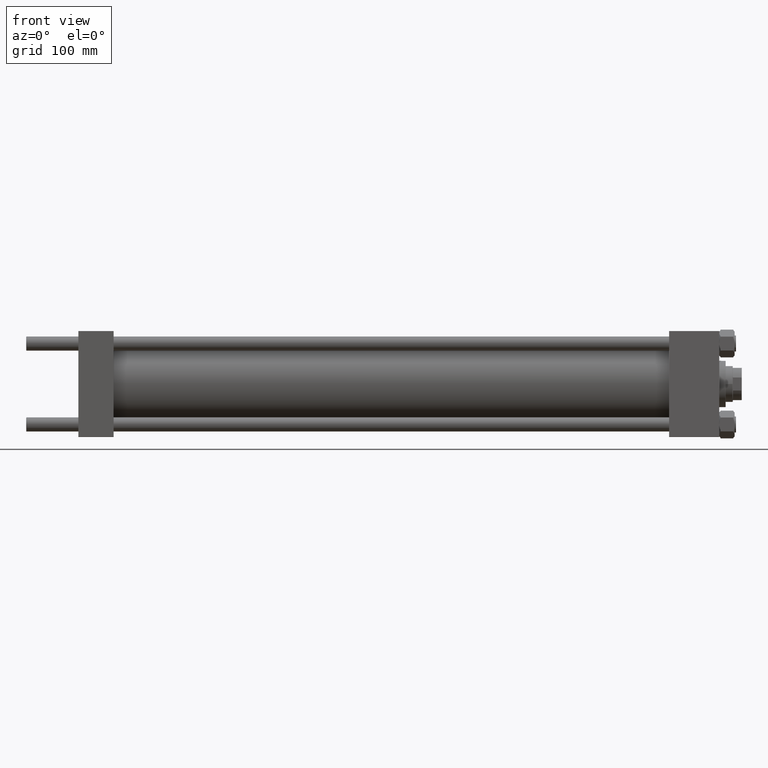
[diagram: clean part render]
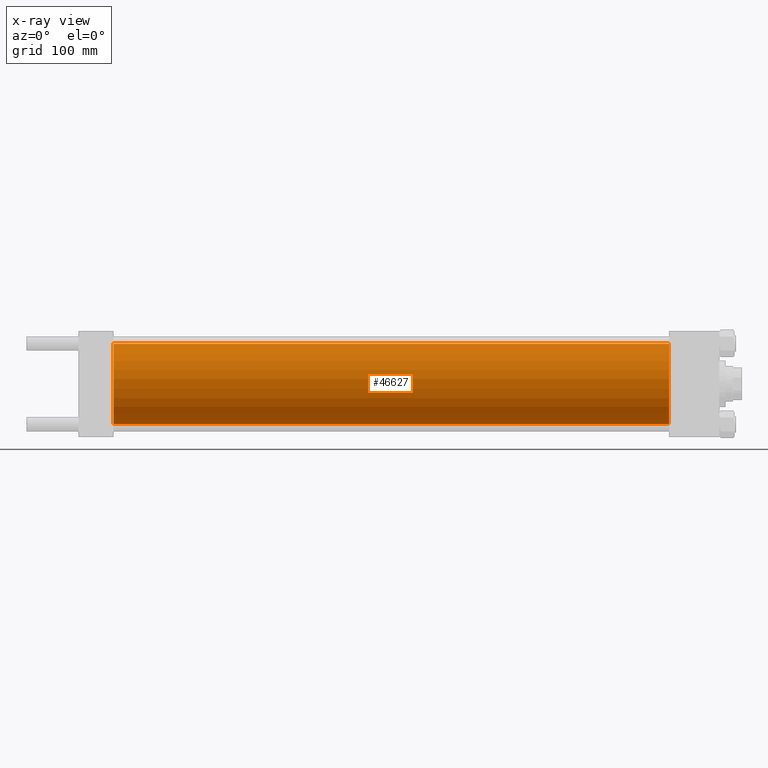
[diagram: x-ray — body ghosted, one internal face saturated and labeled with its STEP entity id]
A machine part, front view, then the same camera in x-ray: the body is ghosted and one INTERNAL B-rep face — a face not visible from any outside direction — is saturated and labeled: STEP entity #46627.
In plain terms, the highlighted cylindrical surface (partial cylindrical patch) has radius 62.5 mm, axis along (-1, -0, -0).
Its self-contained STEP definition (entity closure, byte-faithful):
#1691 = ORIENTED_EDGE ( 'NONE', *, *, #38673, .F. ) ;
#2238 = VERTEX_POINT ( 'NONE', #37221 ) ;
#2865 = EDGE_CURVE ( 'NONE', #2238, #7981, #4852, .T. ) ;
#3001 = EDGE_CURVE ( 'NONE', #22599, #11052, #48337, .T. ) ;
#4098 = DIRECTION ( 'NONE',  ( 0.000000000000000000, 0.000000000000000000, -1.000000000000000000 ) ) ;
#4812 = VECTOR ( 'NONE', #26984, 1000.000000000000000 ) ;
#4852 = LINE ( 'NONE', #20377, #4812 ) ;
#7981 = VERTEX_POINT ( 'NONE', #19908 ) ;
#8115 = AXIS2_PLACEMENT_3D ( 'NONE', #39014, #30896, #8260 ) ;
#8165 = DIRECTION ( 'NONE',  ( 1.000000000000000000, 0.000000000000000000, 0.000000000000000000 ) ) ;
#8260 = DIRECTION ( 'NONE',  ( 0.000000000000000000, 0.000000000000000000, 1.000000000000000000 ) ) ;
#11052 = VERTEX_POINT ( 'NONE', #13854 ) ;
#11189 = ORIENTED_EDGE ( 'NONE', *, *, #2865, .F. ) ;
#12905 = VECTOR ( 'NONE', #44526, 1000.000000000000000 ) ;
#13854 = CARTESIAN_POINT ( 'NONE',  ( 55.00000000000000000, 7.654042494670957804E-15, -62.50000000000000000 ) ) ;
#15161 = CIRCLE ( 'NONE', #18434, 62.50000000000000000 ) ;
#16631 = AXIS2_PLACEMENT_3D ( 'NONE', #31051, #8165, #4098 ) ;
#17730 = DIRECTION ( 'NONE',  ( 1.000000000000000000, 0.000000000000000000, 0.000000000000000000 ) ) ;
#18434 = AXIS2_PLACEMENT_3D ( 'NONE', #29434, #17730, #44940 ) ;
#19908 = CARTESIAN_POINT ( 'NONE',  ( 55.00000000000000000, 0.000000000000000000, 62.50000000000000000 ) ) ;
#20377 = CARTESIAN_POINT ( 'NONE',  ( 919.0000000000000000, 0.000000000000000000, 62.50000000000000000 ) ) ;
#22599 = VERTEX_POINT ( 'NONE', #25932 ) ;
#24486 = EDGE_CURVE ( 'NONE', #2238, #22599, #45853, .T. ) ;
#25932 = CARTESIAN_POINT ( 'NONE',  ( 919.0000000000000000, 7.654042494670957804E-15, -62.50000000000000000 ) ) ;
#26984 = DIRECTION ( 'NONE',  ( -1.000000000000000000, -0.000000000000000000, -0.000000000000000000 ) ) ;
#28101 = CYLINDRICAL_SURFACE ( 'NONE', #8115, 62.50000000000000000 ) ;
#29016 = CARTESIAN_POINT ( 'NONE',  ( 919.0000000000000000, 7.654042494670957804E-15, -62.50000000000000000 ) ) ;
#29434 = CARTESIAN_POINT ( 'NONE',  ( 55.00000000000000000, 0.000000000000000000, 0.000000000000000000 ) ) ;
#30896 = DIRECTION ( 'NONE',  ( -1.000000000000000000, -0.000000000000000000, -0.000000000000000000 ) ) ;
#31001 = EDGE_LOOP ( 'NONE', ( #49284, #44760, #1691, #11189 ) ) ;
#31051 = CARTESIAN_POINT ( 'NONE',  ( 919.0000000000000000, 0.000000000000000000, 0.000000000000000000 ) ) ;
#34705 = FACE_OUTER_BOUND ( 'NONE', #31001, .T. ) ;
#37221 = CARTESIAN_POINT ( 'NONE',  ( 919.0000000000000000, 0.000000000000000000, 62.50000000000000000 ) ) ;
#38673 = EDGE_CURVE ( 'NONE', #7981, #11052, #15161, .T. ) ;
#39014 = CARTESIAN_POINT ( 'NONE',  ( 919.0000000000000000, 0.000000000000000000, 0.000000000000000000 ) ) ;
#44526 = DIRECTION ( 'NONE',  ( -1.000000000000000000, -0.000000000000000000, -0.000000000000000000 ) ) ;
#44760 = ORIENTED_EDGE ( 'NONE', *, *, #3001, .T. ) ;
#44940 = DIRECTION ( 'NONE',  ( 0.000000000000000000, 0.000000000000000000, -1.000000000000000000 ) ) ;
#45853 = CIRCLE ( 'NONE', #16631, 62.50000000000000000 ) ;
#46627 = ADVANCED_FACE ( 'NONE', ( #34705 ), #28101, .F. ) ;
#48337 = LINE ( 'NONE', #29016, #12905 ) ;
#49284 = ORIENTED_EDGE ( 'NONE', *, *, #24486, .T. ) ;